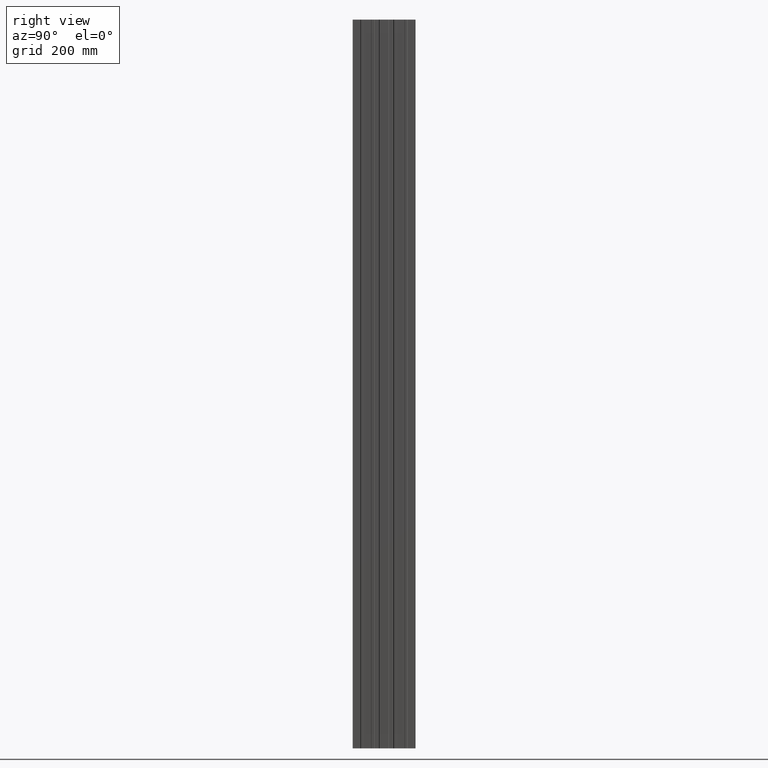
[diagram: clean part render]
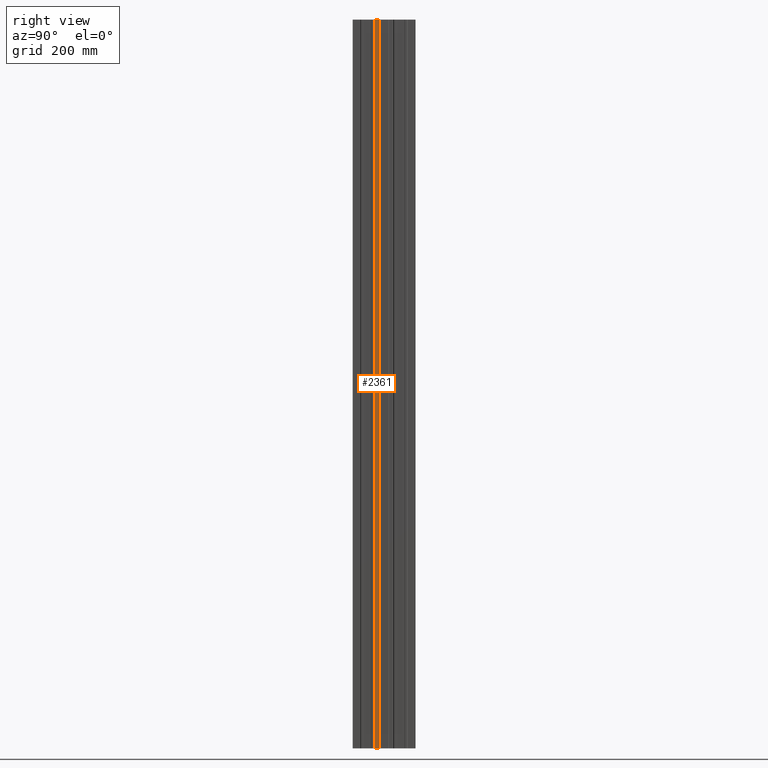
[diagram: same view with one face highlighted and labeled with its STEP entity id]
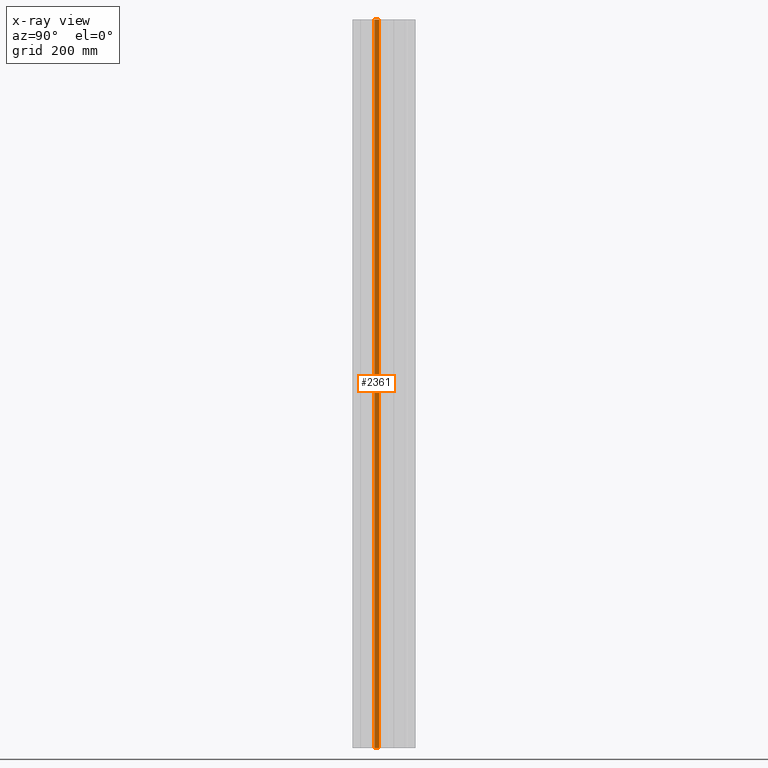
[diagram: x-ray of the same camera — body ghosted, the highlighted face saturated]
A machine part, right view. The second image highlights one B-rep face of the part: STEP entity #2361.
The next image is the same camera in x-ray: the body ghosted, the highlighted face saturated — about 0% of this face is hidden behind the body in this view.
In plain terms, the highlighted planar face has unit normal (-1, -0, 0).
Its self-contained STEP definition (entity closure, byte-faithful):
#4 = EDGE_LOOP ( 'NONE', ( #499, #36, #83, #1317 ) ) ;
#36 = ORIENTED_EDGE ( 'NONE', *, *, #158, .F. ) ;
#83 = ORIENTED_EDGE ( 'NONE', *, *, #2319, .F. ) ;
#101 = CARTESIAN_POINT ( 'NONE',  ( 5.999999999999992000, 84.00000000000000000, 1162.000000000000000 ) ) ;
#131 = CARTESIAN_POINT ( 'NONE',  ( 5.999999999999992000, 84.00000000000000000, 1162.000000000000000 ) ) ;
#135 = CARTESIAN_POINT ( 'NONE',  ( 5.999999999999992000, 84.00000000000000000, 1162.000000000000000 ) ) ;
#158 = EDGE_CURVE ( 'NONE', #502, #1221, #1070, .T. ) ;
#254 = LINE ( 'NONE', #544, #1152 ) ;
#283 = CARTESIAN_POINT ( 'NONE',  ( 5.999999999999992000, 84.00000000000000000, -1162.000000000000000 ) ) ;
#304 = DIRECTION ( 'NONE',  ( 1.240925293258973000E-016, -1.000000000000000000, 0.0000000000000000000 ) ) ;
#460 = CARTESIAN_POINT ( 'NONE',  ( 5.999999999999993800, 70.02072594216369300, 1162.000000000000000 ) ) ;
#499 = ORIENTED_EDGE ( 'NONE', *, *, #970, .T. ) ;
#502 = VERTEX_POINT ( 'NONE', #135 ) ;
#544 = CARTESIAN_POINT ( 'NONE',  ( 5.999999999999992000, 84.00000000000000000, -1162.000000000000000 ) ) ;
#626 = VECTOR ( 'NONE', #1377, 1000.000000000000000 ) ;
#630 = CARTESIAN_POINT ( 'NONE',  ( 5.999999999999992000, 84.00000000000000000, 1162.000000000000000 ) ) ;
#947 = FACE_OUTER_BOUND ( 'NONE', #4, .T. ) ;
#958 = EDGE_CURVE ( 'NONE', #2207, #1978, #1773, .T. ) ;
#970 = EDGE_CURVE ( 'NONE', #1978, #1221, #254, .T. ) ;
#1070 = LINE ( 'NONE', #131, #2180 ) ;
#1079 = CARTESIAN_POINT ( 'NONE',  ( 5.999999999999993800, 70.02072594216369300, 1162.000000000000000 ) ) ;
#1152 = VECTOR ( 'NONE', #1913, 1000.000000000000000 ) ;
#1209 = VECTOR ( 'NONE', #1485, 1000.000000000000000 ) ;
#1221 = VERTEX_POINT ( 'NONE', #283 ) ;
#1235 = CARTESIAN_POINT ( 'NONE',  ( 5.999999999999993800, 70.02072594216369300, -1162.000000000000000 ) ) ;
#1244 = LINE ( 'NONE', #630, #626 ) ;
#1317 = ORIENTED_EDGE ( 'NONE', *, *, #958, .T. ) ;
#1377 = DIRECTION ( 'NONE',  ( -1.240925293258973000E-016, 1.000000000000000000, -0.0000000000000000000 ) ) ;
#1410 = DIRECTION ( 'NONE',  ( -1.000000000000000000, -1.240925293258973000E-016, 0.0000000000000000000 ) ) ;
#1427 = DIRECTION ( 'NONE',  ( -0.0000000000000000000, -0.0000000000000000000, -1.000000000000000000 ) ) ;
#1485 = DIRECTION ( 'NONE',  ( -0.0000000000000000000, -0.0000000000000000000, -1.000000000000000000 ) ) ;
#1496 = AXIS2_PLACEMENT_3D ( 'NONE', #101, #1410, #304 ) ;
#1773 = LINE ( 'NONE', #1079, #1209 ) ;
#1824 = PLANE ( 'NONE',  #1496 ) ;
#1913 = DIRECTION ( 'NONE',  ( -1.240925293258973000E-016, 1.000000000000000000, -0.0000000000000000000 ) ) ;
#1978 = VERTEX_POINT ( 'NONE', #1235 ) ;
#2180 = VECTOR ( 'NONE', #1427, 1000.000000000000000 ) ;
#2207 = VERTEX_POINT ( 'NONE', #460 ) ;
#2319 = EDGE_CURVE ( 'NONE', #2207, #502, #1244, .T. ) ;
#2361 = ADVANCED_FACE ( 'NONE', ( #947 ), #1824, .F. ) ;